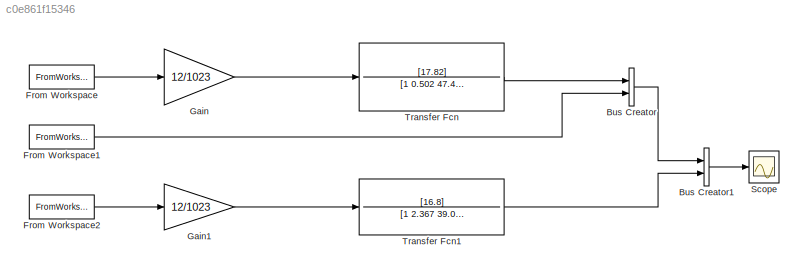
MODEL slx_c0e861f15346
KIND model
CONFIG AbsTol = auto
CONFIG EnableMultiTasking = off
CONFIG FixedStep = auto
CONFIG MaxStep = auto
CONFIG MinStep = auto
CONFIG RelTol = 1e-3
CONFIG SampleTimeConstraint = Unconstrained
CONFIG SolverName = VariableStepAuto
CONFIG StartTime = 0.0
CONFIG StopTime = 7
BLOCK [BusCreator] Bus Creator
  DisplayOption = bar
  InheritFromInputs = on
  Inputs = 2
  Ports = [2, 1]
BLOCK [BusCreator] Bus Creator1
  DisplayOption = bar
  InheritFromInputs = on
  Inputs = 2
  Ports = [2, 1]
BLOCK [FromWorkspace] From Workspace
  SampleTime = 0.002
  VariableName = [T' R']
BLOCK [FromWorkspace] From Workspace1
  SampleTime = 0.002
  VariableName = [T' Y']
BLOCK [FromWorkspace] From Workspace2
  SampleTime = 0.002
  VariableName = [T' R']
BLOCK [Gain] Gain
  Gain = 12/1023
BLOCK [Gain] Gain1
  Gain = 12/1023
BLOCK [Scope] Scope
  Floating = off
  NumInputPorts = 1
  Ports = [1]
  ScopeSpecificationString = Simulink.scopes.TimeScopeBlockCfg('CurrentConfiguration', extmgr.ConfigurationSet(extmgr.Configuration('Core','General UI',true),extmgr.Configuration('Core','Source UI',true),extmgr.Configuration('Sources','WiredSimulink',true),extmgr.Configuration('Visuals','Time Domain',true,'SerializedDisplays',{struct('MinYLimReal','-0.15613','MaxYLimReal','1.40518','YLabelReal','','MinYLimMag','0.00000','MaxY...<+1395ch>
BLOCK [TransferFcn] Transfer Fcn
  Denominator = [1 0.502 47.49]
  Numerator = [17.82]
BLOCK [TransferFcn] Transfer Fcn1
  Denominator = [1 2.367 39.03]
  Numerator = [16.8]
LINE Bus Creator1:1 -> Scope:1
LINE Bus Creator:1 -> Bus Creator1:1
LINE From Workspace1:1 -> Bus Creator:2
LINE From Workspace2:1 -> Gain1:1
LINE From Workspace:1 -> Gain:1
LINE Gain1:1 -> Transfer Fcn1:1
LINE Gain:1 -> Transfer Fcn:1
LINE Transfer Fcn1:1 -> Bus Creator1:2
LINE Transfer Fcn:1 -> Bus Creator:1
